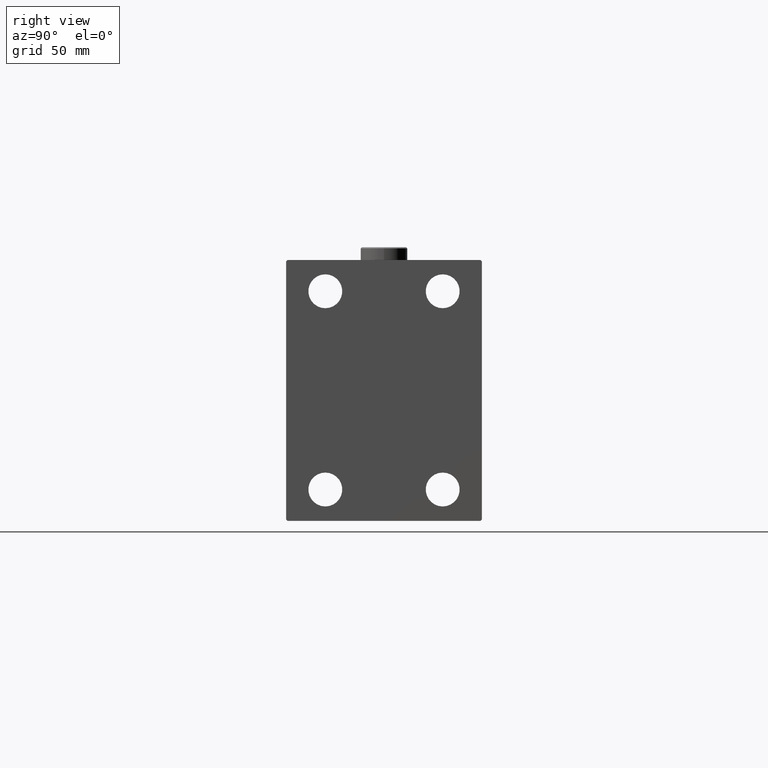
[diagram: clean part render]
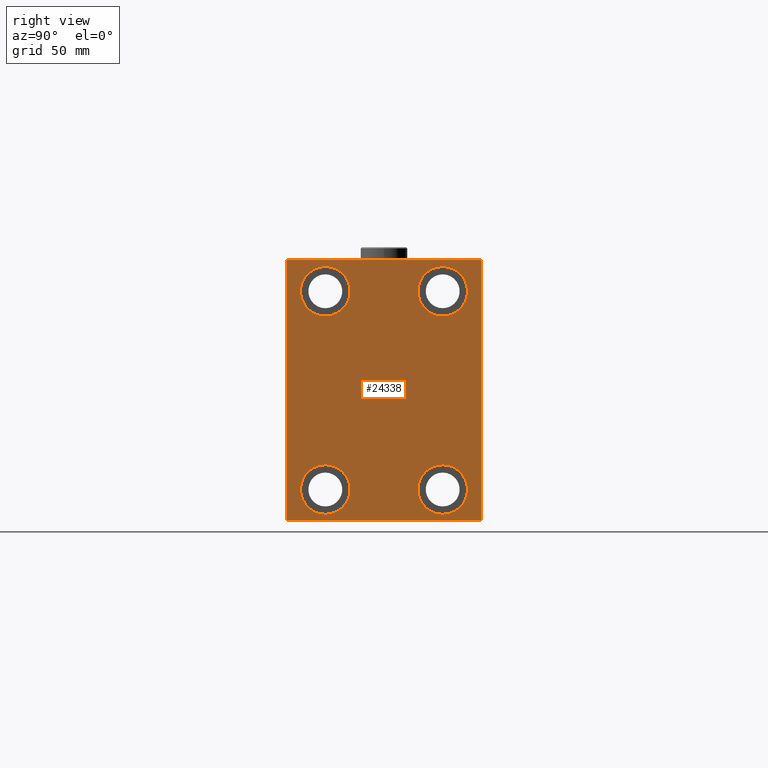
[diagram: same view with one face highlighted and labeled with its STEP entity id]
A machine part, right view. The second image highlights one B-rep face of the part: STEP entity #24338.
In plain terms, the highlighted planar face has unit normal (1, 0, 0).
Its self-contained STEP definition (entity closure, byte-faithful):
#320 = CARTESIAN_POINT ( 'NONE',  ( 153.0000000000000000, 0.000000000000000000, 0.000000000000000000 ) ) ;
#604 = CARTESIAN_POINT ( 'NONE',  ( 153.0000000000000000, -22.49999999999999645, 47.49999999999999289 ) ) ;
#805 = VERTEX_POINT ( 'NONE', #40274 ) ;
#881 = DIRECTION ( 'NONE',  ( 0.000000000000000000, -0.7071067811865474617, -0.7071067811865474617 ) ) ;
#1380 = AXIS2_PLACEMENT_3D ( 'NONE', #46056, #27793, #12201 ) ;
#1483 = VERTEX_POINT ( 'NONE', #4487 ) ;
#1886 = CARTESIAN_POINT ( 'NONE',  ( 153.0000000000000000, -22.50000000000000711, -28.49999999999998934 ) ) ;
#2063 = ORIENTED_EDGE ( 'NONE', *, *, #6858, .T. ) ;
#2237 = CARTESIAN_POINT ( 'NONE',  ( 153.0000000000000000, 22.49999999999999645, -47.49999999999999289 ) ) ;
#2269 = VERTEX_POINT ( 'NONE', #9308 ) ;
#2620 = ORIENTED_EDGE ( 'NONE', *, *, #42100, .T. ) ;
#3387 = CARTESIAN_POINT ( 'NONE',  ( 153.0000000000000000, 37.50000000000000711, -49.50000000000000000 ) ) ;
#4361 = CIRCLE ( 'NONE', #43238, 9.500000000000001776 ) ;
#4450 = ORIENTED_EDGE ( 'NONE', *, *, #20773, .T. ) ;
#4487 = CARTESIAN_POINT ( 'NONE',  ( 153.0000000000000000, -37.50000000000000711, 49.49999999999999289 ) ) ;
#4491 = AXIS2_PLACEMENT_3D ( 'NONE', #15499, #33541, #11597 ) ;
#4575 = CARTESIAN_POINT ( 'NONE',  ( 153.0000000000000000, -37.50000000000000711, 49.99999999999999289 ) ) ;
#5353 = VECTOR ( 'NONE', #35497, 1000.000000000000000 ) ;
#5428 = CARTESIAN_POINT ( 'NONE',  ( 153.0000000000000000, -22.50000000000000711, -37.99999999999999289 ) ) ;
#5608 = CARTESIAN_POINT ( 'NONE',  ( 153.0000000000000000, 43.50000000000026290, 43.49999999999965894 ) ) ;
#5946 = ORIENTED_EDGE ( 'NONE', *, *, #41593, .T. ) ;
#6858 = EDGE_CURVE ( 'NONE', #25894, #805, #13310, .T. ) ;
#7523 = EDGE_LOOP ( 'NONE', ( #4450, #2063 ) ) ;
#7697 = EDGE_LOOP ( 'NONE', ( #32776, #46941 ) ) ;
#8575 = EDGE_CURVE ( 'NONE', #39341, #33074, #24883, .T. ) ;
#8640 = EDGE_LOOP ( 'NONE', ( #5946, #19159, #2620, #36763, #43521, #35147, #27463, #18250 ) ) ;
#9130 = LINE ( 'NONE', #34243, #20616 ) ;
#9148 = CIRCLE ( 'NONE', #4491, 9.500000000000001776 ) ;
#9308 = CARTESIAN_POINT ( 'NONE',  ( 153.0000000000000000, 22.50000000000000355, 47.49999999999999289 ) ) ;
#10082 = CARTESIAN_POINT ( 'NONE',  ( 153.0000000000000000, -22.49999999999999645, 37.99999999999999289 ) ) ;
#10221 = EDGE_CURVE ( 'NONE', #37143, #47129, #18897, .T. ) ;
#10488 = CARTESIAN_POINT ( 'NONE',  ( 153.0000000000000000, 22.49999999999999645, -37.99999999999999289 ) ) ;
#10680 = CARTESIAN_POINT ( 'NONE',  ( 153.0000000000000000, -22.50000000000000711, -37.99999999999999289 ) ) ;
#10988 = AXIS2_PLACEMENT_3D ( 'NONE', #5428, #46352, #17127 ) ;
#11102 = CARTESIAN_POINT ( 'NONE',  ( 153.0000000000000000, 43.50000000000000711, -43.50000000000000711 ) ) ;
#11275 = FACE_BOUND ( 'NONE', #25763, .T. ) ;
#11440 = DIRECTION ( 'NONE',  ( 0.000000000000000000, 0.000000000000000000, 1.000000000000000000 ) ) ;
#11597 = DIRECTION ( 'NONE',  ( 0.000000000000000000, 0.000000000000000000, 1.000000000000000000 ) ) ;
#11757 = VERTEX_POINT ( 'NONE', #2237 ) ;
#12201 = DIRECTION ( 'NONE',  ( 0.000000000000000000, 0.000000000000000000, 1.000000000000000000 ) ) ;
#12231 = EDGE_CURVE ( 'NONE', #33074, #37143, #39370, .T. ) ;
#12509 = CIRCLE ( 'NONE', #39762, 9.500000000000001776 ) ;
#12591 = VERTEX_POINT ( 'NONE', #35364 ) ;
#12633 = VECTOR ( 'NONE', #26441, 1000.000000000000114 ) ;
#13147 = ORIENTED_EDGE ( 'NONE', *, *, #33032, .T. ) ;
#13310 = CIRCLE ( 'NONE', #10988, 9.500000000000001776 ) ;
#14310 = LINE ( 'NONE', #5608, #28365 ) ;
#14710 = EDGE_CURVE ( 'NONE', #14810, #35760, #14310, .T. ) ;
#14810 = VERTEX_POINT ( 'NONE', #33069 ) ;
#14992 = EDGE_CURVE ( 'NONE', #12591, #1483, #9130, .T. ) ;
#15315 = AXIS2_PLACEMENT_3D ( 'NONE', #320, #19063, #18118 ) ;
#15499 = CARTESIAN_POINT ( 'NONE',  ( 153.0000000000000000, 22.50000000000000355, 37.99999999999999289 ) ) ;
#15805 = VECTOR ( 'NONE', #38889, 1000.000000000000000 ) ;
#16783 = AXIS2_PLACEMENT_3D ( 'NONE', #10680, #17755, #21408 ) ;
#17127 = DIRECTION ( 'NONE',  ( 0.000000000000000000, 0.000000000000000000, 1.000000000000000000 ) ) ;
#17755 = DIRECTION ( 'NONE',  ( -1.000000000000000000, -0.000000000000000000, -0.000000000000000000 ) ) ;
#17806 = DIRECTION ( 'NONE',  ( 0.000000000000000000, 0.000000000000000000, 1.000000000000000000 ) ) ;
#18118 = DIRECTION ( 'NONE',  ( 0.000000000000000000, 0.000000000000000000, -1.000000000000000000 ) ) ;
#18250 = ORIENTED_EDGE ( 'NONE', *, *, #14710, .T. ) ;
#18526 = CARTESIAN_POINT ( 'NONE',  ( 153.0000000000000000, 22.50000000000000355, 37.99999999999999289 ) ) ;
#18897 = LINE ( 'NONE', #11102, #12633 ) ;
#19063 = DIRECTION ( 'NONE',  ( 1.000000000000000000, 0.000000000000000000, 0.000000000000000000 ) ) ;
#19159 = ORIENTED_EDGE ( 'NONE', *, *, #14992, .T. ) ;
#19441 = DIRECTION ( 'NONE',  ( 0.000000000000000000, 0.000000000000000000, -1.000000000000000000 ) ) ;
#20246 = CIRCLE ( 'NONE', #24151, 9.500000000000001776 ) ;
#20616 = VECTOR ( 'NONE', #881, 1000.000000000000114 ) ;
#20773 = EDGE_CURVE ( 'NONE', #805, #25894, #47107, .T. ) ;
#20933 = CARTESIAN_POINT ( 'NONE',  ( 153.0000000000000000, 36.99999999999999289, 50.00000000000000711 ) ) ;
#21390 = ORIENTED_EDGE ( 'NONE', *, *, #26931, .T. ) ;
#21408 = DIRECTION ( 'NONE',  ( 0.000000000000000000, 0.000000000000000000, 1.000000000000000000 ) ) ;
#22451 = DIRECTION ( 'NONE',  ( 0.000000000000000000, -1.000000000000000000, -1.850371707708594316E-16 ) ) ;
#23092 = LINE ( 'NONE', #4575, #25672 ) ;
#23563 = VERTEX_POINT ( 'NONE', #34858 ) ;
#24151 = AXIS2_PLACEMENT_3D ( 'NONE', #29671, #30138, #45456 ) ;
#24338 = ADVANCED_FACE ( 'NONE', ( #11275, #33446, #26152, #44176, #33681 ), #33914, .T. ) ;
#24883 = LINE ( 'NONE', #25858, #25089 ) ;
#25037 = CARTESIAN_POINT ( 'NONE',  ( 153.0000000000000000, 37.00000000000000711, -50.00000000000000000 ) ) ;
#25089 = VECTOR ( 'NONE', #32187, 1000.000000000000114 ) ;
#25672 = VECTOR ( 'NONE', #19441, 1000.000000000000000 ) ;
#25763 = EDGE_LOOP ( 'NONE', ( #13147, #39386 ) ) ;
#25858 = CARTESIAN_POINT ( 'NONE',  ( 153.0000000000000000, -43.50000000000002132, -43.50000000000002132 ) ) ;
#25894 = VERTEX_POINT ( 'NONE', #1886 ) ;
#26089 = DIRECTION ( 'NONE',  ( -1.000000000000000000, -0.000000000000000000, -0.000000000000000000 ) ) ;
#26152 = FACE_BOUND ( 'NONE', #37813, .T. ) ;
#26441 = DIRECTION ( 'NONE',  ( -0.000000000000000000, 0.7071067811865474617, 0.7071067811865474617 ) ) ;
#26931 = EDGE_CURVE ( 'NONE', #23563, #2269, #9148, .T. ) ;
#27463 = ORIENTED_EDGE ( 'NONE', *, *, #41014, .T. ) ;
#27551 = CARTESIAN_POINT ( 'NONE',  ( 153.0000000000000000, -37.00000000000003553, -50.00000000000000711 ) ) ;
#27793 = DIRECTION ( 'NONE',  ( -1.000000000000000000, -0.000000000000000000, -0.000000000000000000 ) ) ;
#28365 = VECTOR ( 'NONE', #40376, 999.9999999999998863 ) ;
#28672 = CARTESIAN_POINT ( 'NONE',  ( 153.0000000000000000, 37.50000000000000711, -50.00000000000000000 ) ) ;
#28797 = LINE ( 'NONE', #33408, #35734 ) ;
#29050 = ORIENTED_EDGE ( 'NONE', *, *, #46086, .T. ) ;
#29671 = CARTESIAN_POINT ( 'NONE',  ( 153.0000000000000000, -22.49999999999999645, 37.99999999999999289 ) ) ;
#30107 = EDGE_CURVE ( 'NONE', #42257, #33580, #4361, .T. ) ;
#30138 = DIRECTION ( 'NONE',  ( -1.000000000000000000, -0.000000000000000000, -0.000000000000000000 ) ) ;
#31761 = CIRCLE ( 'NONE', #38739, 9.500000000000001776 ) ;
#32187 = DIRECTION ( 'NONE',  ( -0.000000000000000000, 0.7071067811865474617, -0.7071067811865474617 ) ) ;
#32717 = VERTEX_POINT ( 'NONE', #34437 ) ;
#32745 = DIRECTION ( 'NONE',  ( 0.000000000000000000, 0.000000000000000000, 1.000000000000000000 ) ) ;
#32776 = ORIENTED_EDGE ( 'NONE', *, *, #30107, .T. ) ;
#33032 = EDGE_CURVE ( 'NONE', #11757, #32717, #34022, .T. ) ;
#33069 = CARTESIAN_POINT ( 'NONE',  ( 153.0000000000000000, 37.49999999999999289, 49.50000000000000000 ) ) ;
#33074 = VERTEX_POINT ( 'NONE', #27551 ) ;
#33408 = CARTESIAN_POINT ( 'NONE',  ( 153.0000000000000000, 37.49999999999999289, 50.00000000000000711 ) ) ;
#33446 = FACE_BOUND ( 'NONE', #7697, .T. ) ;
#33541 = DIRECTION ( 'NONE',  ( -1.000000000000000000, -0.000000000000000000, -0.000000000000000000 ) ) ;
#33580 = VERTEX_POINT ( 'NONE', #604 ) ;
#33681 = FACE_OUTER_BOUND ( 'NONE', #8640, .T. ) ;
#33914 = PLANE ( 'NONE',  #15315 ) ;
#34022 = CIRCLE ( 'NONE', #1380, 9.500000000000001776 ) ;
#34243 = CARTESIAN_POINT ( 'NONE',  ( 153.0000000000000000, -43.50000000000000711, 43.50000000000000711 ) ) ;
#34316 = CARTESIAN_POINT ( 'NONE',  ( 153.0000000000000000, -37.50000000000000711, -49.50000000000003553 ) ) ;
#34437 = CARTESIAN_POINT ( 'NONE',  ( 153.0000000000000000, 22.49999999999999645, -28.49999999999998934 ) ) ;
#34858 = CARTESIAN_POINT ( 'NONE',  ( 153.0000000000000000, 22.50000000000000355, 28.49999999999998934 ) ) ;
#34899 = CARTESIAN_POINT ( 'NONE',  ( 153.0000000000000000, -22.49999999999999645, 28.49999999999998934 ) ) ;
#35147 = ORIENTED_EDGE ( 'NONE', *, *, #10221, .T. ) ;
#35364 = CARTESIAN_POINT ( 'NONE',  ( 153.0000000000000000, -37.00000000000000711, 49.99999999999999289 ) ) ;
#35497 = DIRECTION ( 'NONE',  ( 0.000000000000000000, -1.387778780781445676E-16, 1.000000000000000000 ) ) ;
#35734 = VECTOR ( 'NONE', #22451, 1000.000000000000000 ) ;
#35760 = VERTEX_POINT ( 'NONE', #20933 ) ;
#36317 = DIRECTION ( 'NONE',  ( -1.000000000000000000, -0.000000000000000000, -0.000000000000000000 ) ) ;
#36398 = DIRECTION ( 'NONE',  ( -1.000000000000000000, -0.000000000000000000, -0.000000000000000000 ) ) ;
#36763 = ORIENTED_EDGE ( 'NONE', *, *, #8575, .T. ) ;
#37143 = VERTEX_POINT ( 'NONE', #25037 ) ;
#37813 = EDGE_LOOP ( 'NONE', ( #21390, #29050 ) ) ;
#38739 = AXIS2_PLACEMENT_3D ( 'NONE', #10488, #36317, #17806 ) ;
#38889 = DIRECTION ( 'NONE',  ( 0.000000000000000000, 1.000000000000000000, 9.251858538542970348E-17 ) ) ;
#39193 = EDGE_CURVE ( 'NONE', #32717, #11757, #31761, .T. ) ;
#39341 = VERTEX_POINT ( 'NONE', #34316 ) ;
#39370 = LINE ( 'NONE', #46924, #15805 ) ;
#39386 = ORIENTED_EDGE ( 'NONE', *, *, #39193, .T. ) ;
#39762 = AXIS2_PLACEMENT_3D ( 'NONE', #18526, #26089, #11440 ) ;
#40274 = CARTESIAN_POINT ( 'NONE',  ( 153.0000000000000000, -22.50000000000000711, -47.49999999999999289 ) ) ;
#40376 = DIRECTION ( 'NONE',  ( -0.000000000000000000, -0.7071067811865425767, 0.7071067811865525687 ) ) ;
#41014 = EDGE_CURVE ( 'NONE', #47129, #14810, #46939, .T. ) ;
#41593 = EDGE_CURVE ( 'NONE', #35760, #12591, #28797, .T. ) ;
#42100 = EDGE_CURVE ( 'NONE', #1483, #39341, #23092, .T. ) ;
#42257 = VERTEX_POINT ( 'NONE', #34899 ) ;
#43238 = AXIS2_PLACEMENT_3D ( 'NONE', #10082, #36398, #32745 ) ;
#43521 = ORIENTED_EDGE ( 'NONE', *, *, #12231, .T. ) ;
#44176 = FACE_BOUND ( 'NONE', #7523, .T. ) ;
#45271 = EDGE_CURVE ( 'NONE', #33580, #42257, #20246, .T. ) ;
#45456 = DIRECTION ( 'NONE',  ( 0.000000000000000000, 0.000000000000000000, 1.000000000000000000 ) ) ;
#46056 = CARTESIAN_POINT ( 'NONE',  ( 153.0000000000000000, 22.49999999999999645, -37.99999999999999289 ) ) ;
#46086 = EDGE_CURVE ( 'NONE', #2269, #23563, #12509, .T. ) ;
#46352 = DIRECTION ( 'NONE',  ( -1.000000000000000000, -0.000000000000000000, -0.000000000000000000 ) ) ;
#46924 = CARTESIAN_POINT ( 'NONE',  ( 153.0000000000000000, -37.50000000000000711, -50.00000000000000711 ) ) ;
#46939 = LINE ( 'NONE', #28672, #5353 ) ;
#46941 = ORIENTED_EDGE ( 'NONE', *, *, #45271, .T. ) ;
#47107 = CIRCLE ( 'NONE', #16783, 9.500000000000001776 ) ;
#47129 = VERTEX_POINT ( 'NONE', #3387 ) ;